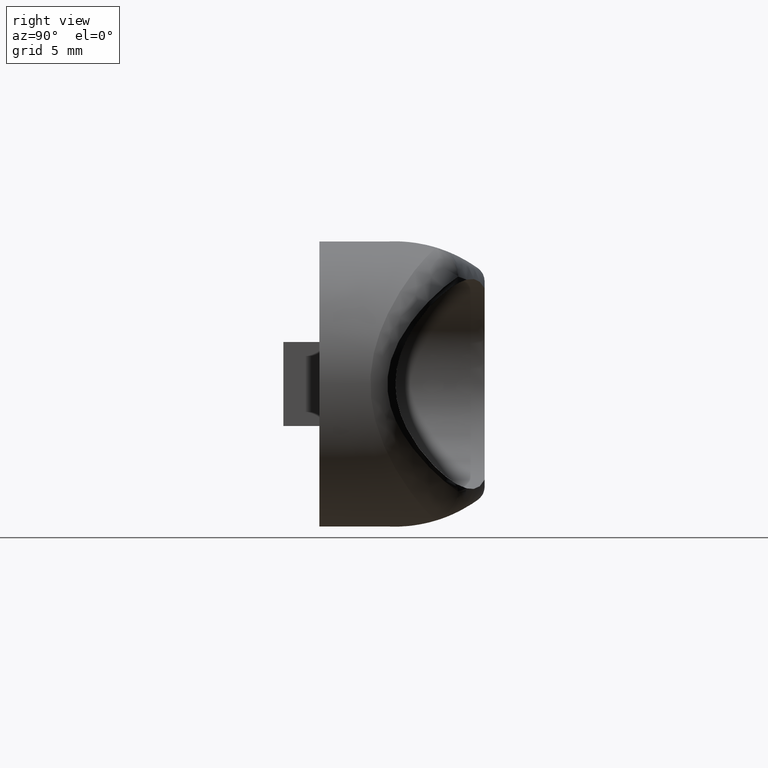
[diagram: clean part render]
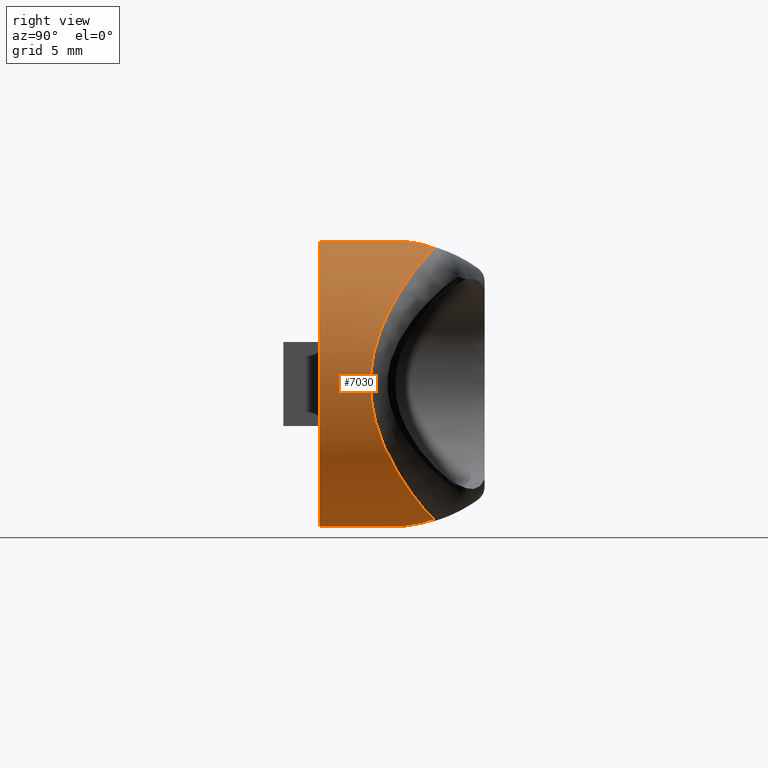
[diagram: same view with one face highlighted and labeled with its STEP entity id]
A machine part, right view. The second image highlights one B-rep face of the part: STEP entity #7030.
In plain terms, the highlighted face is a freeform B-spline surface patch.
Its self-contained STEP definition (entity closure, byte-faithful):
#1318=CARTESIAN_POINT('',(-0.265116297193638,-6.667739119100730,9.476504282840940));
#1319=VERTEX_POINT('',#1318);
#1346=CARTESIAN_POINT('',(-0.265116297193637,-11.000000997447140,9.476504282840940));
#1347=VERTEX_POINT('',#1346);
#1361=CARTESIAN_POINT('',(-0.265116297193638,-6.667739119100730,9.476504282840940));
#1362=CARTESIAN_POINT('',(-0.265116297193637,-11.000000997447140,9.476504282840940));
#1363=QUASI_UNIFORM_CURVE('',1,(#1361,#1362),.UNSPECIFIED.,.F.,.U.);
#1364=EDGE_CURVE('',#1319,#1347,#1363,.T.);
#1635=CARTESIAN_POINT('',(1.521081629290455,-3.327719230361055,9.007470126720751));
#1636=VERTEX_POINT('',#1635);
#1637=CARTESIAN_POINT('',(0.136187645533401,-4.643965705192390,9.402721882077399));
#1638=VERTEX_POINT('',#1637);
#1639=CARTESIAN_POINT('',(1.521081629290455,-3.327719230361055,9.007470126720751));
#1640=CARTESIAN_POINT('',(1.460948659982938,-3.372641410445398,9.029231846346466));
#1641=CARTESIAN_POINT('',(1.339024945823609,-3.463724207571342,9.073355223485761));
#1642=CARTESIAN_POINT('',(1.158291814998560,-3.611456489376350,9.133604061440300));
#1643=CARTESIAN_POINT('',(0.976046818175358,-3.769355034309712,9.190674694525022));
#1644=CARTESIAN_POINT('',(0.780503723553622,-3.950347286612303,9.247578909714765));
#1645=CARTESIAN_POINT('',(0.583366500277712,-4.141046519279774,9.300309333648544));
#1646=CARTESIAN_POINT('',(0.398761450124165,-4.330318914670779,9.345357323469614));
#1647=CARTESIAN_POINT('',(0.250520022989960,-4.492426347870647,9.378830690303131));
#1648=CARTESIAN_POINT('',(0.171263218219807,-4.597475552001885,9.395392398931111));
#1649=CARTESIAN_POINT('',(0.136187645533401,-4.643965705192390,9.402721882077399));
#1650=B_SPLINE_CURVE_WITH_KNOTS('',3,(#1639,#1640,#1641,#1642,#1643,#1644,#1645,#1646,#1647,#1648,#1649),.UNSPECIFIED.,.F.,.U.,(4,1,1,1,1,1,1,1,4),(0.0,0.119704740535888,0.242709560773173,0.369170885742727,0.499232669680352,0.660021022585114,0.796918389754391,0.910125019522300,1.0),.UNSPECIFIED.);
#1651=EDGE_CURVE('',#1636,#1638,#1650,.T.);
#1873=CARTESIAN_POINT('',(1.515961948732885,-3.329728392395535,-9.007935168094321));
#1874=VERTEX_POINT('',#1873);
#1982=CARTESIAN_POINT('',(-0.265116297193637,-6.424992831810860,-9.476505030842070));
#1983=VERTEX_POINT('',#1982);
#2017=CARTESIAN_POINT('',(-0.265116297193637,-6.424992831810860,-9.476505030842070));
#2018=CARTESIAN_POINT('',(-0.291396219217454,-6.348872354979682,-9.480749160571648));
#2019=CARTESIAN_POINT('',(-0.311736168844589,-6.271488783546056,-9.483921774369184));
#2020=CARTESIAN_POINT('',(-0.337471020089740,-6.113554296448371,-9.487895822611401));
#2021=CARTESIAN_POINT('',(-0.342658090101809,-6.032244449298259,-9.488669886402786));
#2022=CARTESIAN_POINT('',(-0.336321380547438,-5.873134636737465,-9.487661512989872));
#2023=CARTESIAN_POINT('',(-0.325073712213832,-5.794667556954659,-9.485919513743594));
#2024=CARTESIAN_POINT('',(-0.297713611076742,-5.678381550954379,-9.481583811675835));
#2025=CARTESIAN_POINT('',(-0.286817339673416,-5.639745323398628,-9.479845263221446));
#2026=CARTESIAN_POINT('',(-0.262030368377846,-5.563373491955152,-9.475836053217876));
#2027=CARTESIAN_POINT('',(-0.248282844329610,-5.526027822104573,-9.473588349635831));
#2028=CARTESIAN_POINT('',(-0.203725997766281,-5.416054593658211,-9.466188596113828));
#2029=CARTESIAN_POINT('',(-0.169640141135143,-5.345467690157779,-9.460384136090845));
#2030=CARTESIAN_POINT('',(-0.095524971513498,-5.208032648930392,-9.447270262911266));
#2031=CARTESIAN_POINT('',(-0.055478481646343,-5.141195105439916,-9.439958327395669));
#2032=CARTESIAN_POINT('',(0.070928010765982,-4.944681142956575,-9.415947561964620));
#2033=CARTESIAN_POINT('',(0.163398074141278,-4.818907921199998,-9.397185225333111));
#2034=CARTESIAN_POINT('',(0.356881204448938,-4.573073094159062,-9.354573890473393));
#2035=CARTESIAN_POINT('',(0.457789915243052,-4.453371345797776,-9.330757610681706));
#2036=CARTESIAN_POINT('',(0.663240173988647,-4.218953703581560,-9.278529621339850));
#2037=CARTESIAN_POINT('',(0.767862264478152,-4.104211370650734,-9.250112896620751));
#2038=CARTESIAN_POINT('',(1.084654031011862,-3.765134344452079,-9.158073333272389));
#2039=CARTESIAN_POINT('',(1.299811290868151,-3.545611941952344,-9.087637706947788));
#2040=CARTESIAN_POINT('',(1.515961948732885,-3.329728392395535,-9.007935168094321));
#2041=B_SPLINE_CURVE_WITH_KNOTS('',3,(#2017,#2018,#2019,#2020,#2021,#2022,#2023,#2024,#2025,#2026,#2027,#2028,#2029,#2030,#2031,#2032,#2033,#2034,#2035,#2036,#2037,#2038,#2039,#2040),.UNSPECIFIED.,.F.,.U.,(4,2,2,2,2,2,2,2,2,2,2,4),(0.0,0.062500000000000,0.125000000000001,0.187500000000001,0.218750000000001,0.250000000000001,0.312500000000001,0.375000000000001,0.500000000000001,0.625000000000000,0.750000000000000,0.999772999737445),.UNSPECIFIED.);
#2042=EDGE_CURVE('',#1983,#1874,#2041,.T.);
#2080=CARTESIAN_POINT('',(-0.265116297193637,-11.000000997447140,-9.476505030842070));
#2081=VERTEX_POINT('',#2080);
#2082=CARTESIAN_POINT('',(-0.265116297193637,-11.000000997447140,-9.476505030842070));
#2083=CARTESIAN_POINT('',(-0.265116297193637,-6.424992831810860,-9.476505030842070));
#2084=QUASI_UNIFORM_CURVE('',1,(#2082,#2083),.UNSPECIFIED.,.F.,.U.);
#2085=EDGE_CURVE('',#2081,#1983,#2084,.T.);
#4998=CARTESIAN_POINT('',(1.515961948732885,-3.329728392395535,-9.007935168094321));
#4999=CARTESIAN_POINT('',(1.567343539541810,-3.351558601824553,-8.989219227904325));
#5000=CARTESIAN_POINT('',(1.751949885350051,-3.430645184413462,-8.920644968568588));
#5001=CARTESIAN_POINT('',(2.071431496698666,-3.574563342676192,-8.787622930801357));
#5002=CARTESIAN_POINT('',(2.477316833175212,-3.766500845837895,-8.598107432668295));
#5003=CARTESIAN_POINT('',(2.893688037192576,-3.974305344561663,-8.378398257805692));
#5004=CARTESIAN_POINT('',(3.318263638488034,-4.197681525607192,-8.126471730192442));
#5005=CARTESIAN_POINT('',(3.859875218059793,-4.499576939199334,-7.765272688905913));
#5006=CARTESIAN_POINT('',(4.490961536096553,-4.877659243196118,-7.271306525050057));
#5007=CARTESIAN_POINT('',(5.173696935792285,-5.327038593180056,-6.619307090079093));
#5008=CARTESIAN_POINT('',(5.753121742138614,-5.761338712545251,-5.945751788148275));
#5009=CARTESIAN_POINT('',(6.235309671086657,-6.155447001271889,-5.271457825412766));
#5010=CARTESIAN_POINT('',(6.628554466939211,-6.486604422419856,-4.615548387019486));
#5011=CARTESIAN_POINT('',(6.957873129209307,-6.778183920632432,-3.953732835223007));
#5012=CARTESIAN_POINT('',(7.283839837472147,-7.084416221288475,-3.152152618520098));
#5013=CARTESIAN_POINT('',(7.567786033717026,-7.366872415234027,-2.200035221533686));
#5014=CARTESIAN_POINT('',(7.758467629381812,-7.565844724724802,-1.096144481418916));
#5015=CARTESIAN_POINT('',(7.831141717380350,-7.648619730776608,0.177145944283082));
#5016=CARTESIAN_POINT('',(7.704810410897046,-7.503044854462153,1.672055101789945));
#5017=CARTESIAN_POINT('',(7.296186086310938,-7.092704371213271,3.200120540292894));
#5018=CARTESIAN_POINT('',(6.651373108869778,-6.488651380692632,4.640177637890960));
#5019=CARTESIAN_POINT('',(5.933910805177219,-5.893644215026921,5.740673259501569));
#5020=CARTESIAN_POINT('',(5.168489104236946,-5.333339942534848,6.628747012735436));
#5021=CARTESIAN_POINT('',(4.486890361690195,-4.883088924465758,7.278660871924567));
#5022=CARTESIAN_POINT('',(3.823823266255568,-4.471455063700393,7.797131643892926));
#5023=CARTESIAN_POINT('',(3.193632765567684,-4.111846386277000,8.211358510521139));
#5024=CARTESIAN_POINT('',(2.603379717369655,-3.811114125651383,8.542303280165074));
#5025=CARTESIAN_POINT('',(2.042613398459613,-3.549061297339780,8.809523036902396));
#5026=CARTESIAN_POINT('',(1.672364327386761,-3.391350683356021,8.951348454719629));
#5027=CARTESIAN_POINT('',(1.521081629290455,-3.327719230361055,9.007470126720751));
#5028=B_SPLINE_CURVE_WITH_KNOTS('',3,(#4998,#4999,#5000,#5001,#5002,#5003,#5004,#5005,#5006,#5007,#5008,#5009,#5010,#5011,#5012,#5013,#5014,#5015,#5016,#5017,#5018,#5019,#5020,#5021,#5022,#5023,#5024,#5025,#5026,#5027),.UNSPECIFIED.,.F.,.U.,(4,1,1,1,1,1,1,1,1,1,1,1,1,1,1,1,1,1,1,1,1,1,1,1,1,1,1,4),(0.010017790359373,0.016921006674178,0.034899812113929,0.053939238561786,0.074041657272894,0.095209077986409,0.117443217372708,0.158141739386555,0.198947422406838,0.239861511525596,0.273927631546277,0.306446990585198,0.337453371573705,0.366985756921900,0.413958633205533,0.458075240905051,0.499829814736091,0.563136354683226,0.632941245191149,0.689739840427129,0.760523971017733,0.801186369958441,0.841925918554523,0.882743254628321,0.910895001899528,0.939812773371281,0.969510235315478,0.989840842089323),.UNSPECIFIED.);
#5029=EDGE_CURVE('',#1874,#1636,#5028,.T.);
#6768=CARTESIAN_POINT('',(-0.265116297193637,-11.000000997447140,-9.476505030842072));
#6769=CARTESIAN_POINT('',(7.800000370480120,-11.000000997447140,-8.170219931827438));
#6770=CARTESIAN_POINT('',(7.800000370480121,-11.000000997447140,-0.000000374000564));
#6771=CARTESIAN_POINT('',(7.800000370480120,-11.000000997447140,8.170219183826308));
#6772=CARTESIAN_POINT('',(-0.265116297193635,-11.000000997447140,9.476504282840946));
#6780=(BOUNDED_CURVE()B_SPLINE_CURVE(2,(#6768,#6769,#6770,#6771,#6772),.UNSPECIFIED.,.F.,.U.)B_SPLINE_CURVE_WITH_KNOTS((3,2,3),(0.0,0.500000000000000,1.0),.UNSPECIFIED.)CURVE()GEOMETRIC_REPRESENTATION_ITEM()RATIONAL_B_SPLINE_CURVE((1.0,0.761539138965960,1.0,0.761539138965960,1.0))REPRESENTATION_ITEM(''));
#6781=EDGE_CURVE('',#2081,#1347,#6780,.T.);
#6963=CARTESIAN_POINT('',(-0.833672486451199,-3.135912186183903,9.551241415738389));
#6964=CARTESIAN_POINT('',(-0.833672486451199,-11.196603217728720,9.551241415738389));
#6965=CARTESIAN_POINT('',(7.766304249096291,-3.135912186183902,8.681156137442359));
#6966=CARTESIAN_POINT('',(7.766304249096291,-11.196603217728724,8.681156137442359));
#6967=CARTESIAN_POINT('',(7.799927741297645,-3.135912186183903,0.037342297230523));
#6968=CARTESIAN_POINT('',(7.799927741297645,-11.196603217728720,0.037342297230523));
#6969=CARTESIAN_POINT('',(7.833551233499001,-3.135912186183902,-8.606471542981316));
#6970=CARTESIAN_POINT('',(7.833551233499001,-11.196603217728724,-8.606471542981316));
#6971=CARTESIAN_POINT('',(-0.759396278109491,-3.135912186183903,-9.543435419663329));
#6972=CARTESIAN_POINT('',(-0.759396278109491,-11.196603217728720,-9.543435419663329));
#6980=(BOUNDED_SURFACE()B_SPLINE_SURFACE(1,2,((#6963,#6965,#6967,#6969,#6971),(#6964,#6966,#6968,#6970,#6972)),.UNSPECIFIED.,.F.,.F.,.U.)B_SPLINE_SURFACE_WITH_KNOTS((2,2),(3,2,3),(0.0,8.060691031544820),(0.0,14.740379645490380,29.480759290980771),.UNSPECIFIED.)GEOMETRIC_REPRESENTATION_ITEM()RATIONAL_B_SPLINE_SURFACE(((1.0,0.743144825477394,1.0,0.743144825477394,1.0),(1.0,0.743144825477394,1.0,0.743144825477394,1.0)))REPRESENTATION_ITEM('')SURFACE());
#6981=ORIENTED_EDGE('',*,*,#5029,.T.);
#6982=ORIENTED_EDGE('',*,*,#1651,.T.);
#6983=CARTESIAN_POINT('',(-0.417972900758230,-5.997537781669670,9.500000132071930));
#6984=VERTEX_POINT('',#6983);
#6985=CARTESIAN_POINT('',(-0.417972900758230,-5.997537781669670,9.500000132071930));
#6986=CARTESIAN_POINT('',(-0.417893241117099,-5.954793744610399,9.499988636748025));
#6987=CARTESIAN_POINT('',(-0.415815110416905,-5.912005646816691,9.499686817925721));
#6988=CARTESIAN_POINT('',(-0.403332129664121,-5.778946622263393,9.497862623991795));
#6989=CARTESIAN_POINT('',(-0.386101700125725,-5.689779820115842,9.495340819145241));
#6990=CARTESIAN_POINT('',(-0.349645168062719,-5.558053912252765,9.489816823086390));
#6991=CARTESIAN_POINT('',(-0.335690647601668,-5.514374289972752,9.487678482020327));
#6992=CARTESIAN_POINT('',(-0.304857799274033,-5.428090388605856,9.482868482460717));
#6993=CARTESIAN_POINT('',(-0.288085829335381,-5.385744304319672,9.480213335514891));
#6994=CARTESIAN_POINT('',(-0.234452594718260,-5.260662082734752,9.471556075400388));
#6995=CARTESIAN_POINT('',(-0.194311945518602,-5.179860069868727,9.464865635401123));
#6996=CARTESIAN_POINT('',(-0.065006764960618,-4.942756988045220,9.442322636184320));
#6997=CARTESIAN_POINT('',(0.032782671166539,-4.791610490743308,9.424014805258990));
#6998=CARTESIAN_POINT('',(0.136187645533401,-4.643965705192390,9.402721882077399));
#6999=B_SPLINE_CURVE_WITH_KNOTS('',3,(#6985,#6986,#6987,#6988,#6989,#6990,#6991,#6992,#6993,#6994,#6995,#6996,#6997,#6998),.UNSPECIFIED.,.F.,.U.,(4,2,2,2,2,2,4),(0.316872692625560,0.375000000000000,0.500000000000000,0.562500000000000,0.624999999999999,0.749999999999999,1.0),.UNSPECIFIED.);
#7000=EDGE_CURVE('',#6984,#1638,#6999,.T.);
#7001=ORIENTED_EDGE('',*,*,#7000,.F.);
#7002=CARTESIAN_POINT('',(-0.417972900758230,-6.002462788298301,9.500000132071930));
#7003=VERTEX_POINT('',#7002);
#7004=CARTESIAN_POINT('',(-0.417972900758230,-5.997537781669670,9.500000132071930));
#7005=CARTESIAN_POINT('',(-0.417972900758230,-6.002462788298301,9.500000132071930));
#7006=QUASI_UNIFORM_CURVE('',1,(#7004,#7005),.UNSPECIFIED.,.F.,.U.);
#7007=EDGE_CURVE('',#6984,#7003,#7006,.T.);
#7008=ORIENTED_EDGE('',*,*,#7007,.T.);
#7009=CARTESIAN_POINT('',(-0.265116297193637,-6.667739119100731,9.476504282840946));
#7010=CARTESIAN_POINT('',(-0.283066147217142,-6.626479076538326,9.479411571424780));
#7011=CARTESIAN_POINT('',(-0.299965204606950,-6.584547935835209,9.482096101822513));
#7012=CARTESIAN_POINT('',(-0.331174259068296,-6.499039987078359,9.486980648027419));
#7013=CARTESIAN_POINT('',(-0.345530120210970,-6.455262654834961,9.489187506971714));
#7014=CARTESIAN_POINT('',(-0.383136604028289,-6.323427497647823,9.494900873085493));
#7015=CARTESIAN_POINT('',(-0.401131077732926,-6.234382055896361,9.497539513557467));
#7016=CARTESIAN_POINT('',(-0.415185007396437,-6.098707288431186,9.499595321063312));
#7017=CARTESIAN_POINT('',(-0.417717619008532,-6.053131931054891,9.499962994129357));
#7018=CARTESIAN_POINT('',(-0.417964605829119,-6.005609830929982,9.499998925354264));
#7019=CARTESIAN_POINT('',(-0.417970061856266,-6.004036354937010,9.499999720017776));
#7020=CARTESIAN_POINT('',(-0.417972900758230,-6.002462788298301,9.500000132071930));
#7021=B_SPLINE_CURVE_WITH_KNOTS('',3,(#7009,#7010,#7011,#7012,#7013,#7014,#7015,#7016,#7017,#7018,#7019,#7020),.UNSPECIFIED.,.F.,.U.,(4,2,2,2,2,4),(0.0,0.062500000000000,0.125000000000000,0.250000000000000,0.312500000000000,0.314640095684181),.UNSPECIFIED.);
#7022=EDGE_CURVE('',#1319,#7003,#7021,.T.);
#7023=ORIENTED_EDGE('',*,*,#7022,.F.);
#7024=ORIENTED_EDGE('',*,*,#1364,.T.);
#7025=ORIENTED_EDGE('',*,*,#6781,.F.);
#7026=ORIENTED_EDGE('',*,*,#2085,.T.);
#7027=ORIENTED_EDGE('',*,*,#2042,.T.);
#7028=EDGE_LOOP('',(#6981,#6982,#7001,#7008,#7023,#7024,#7025,#7026,#7027));
#7029=FACE_OUTER_BOUND('',#7028,.T.);
#7030=ADVANCED_FACE('',(#7029),#6980,.T.);